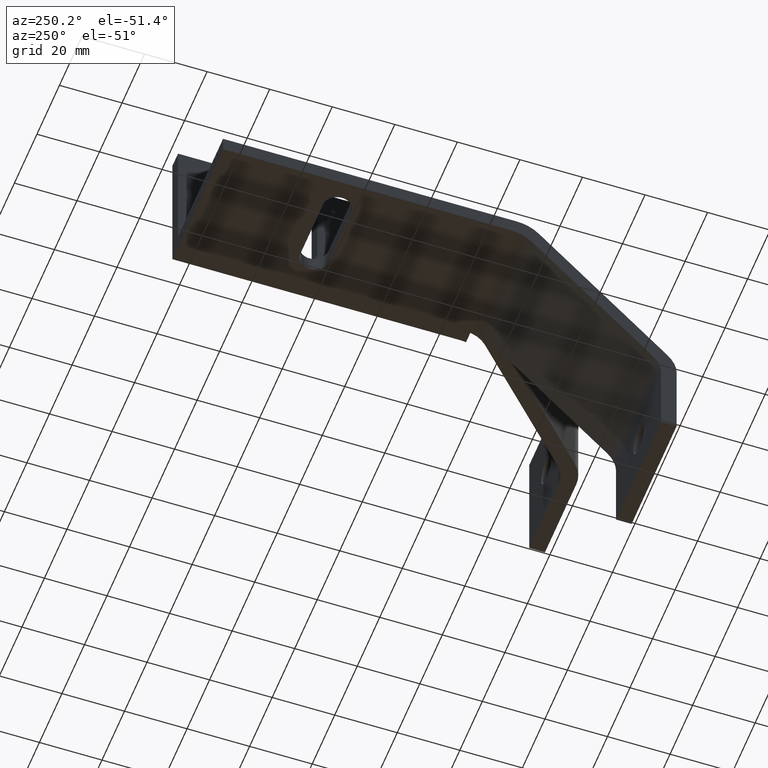
[diagram: clean part render]
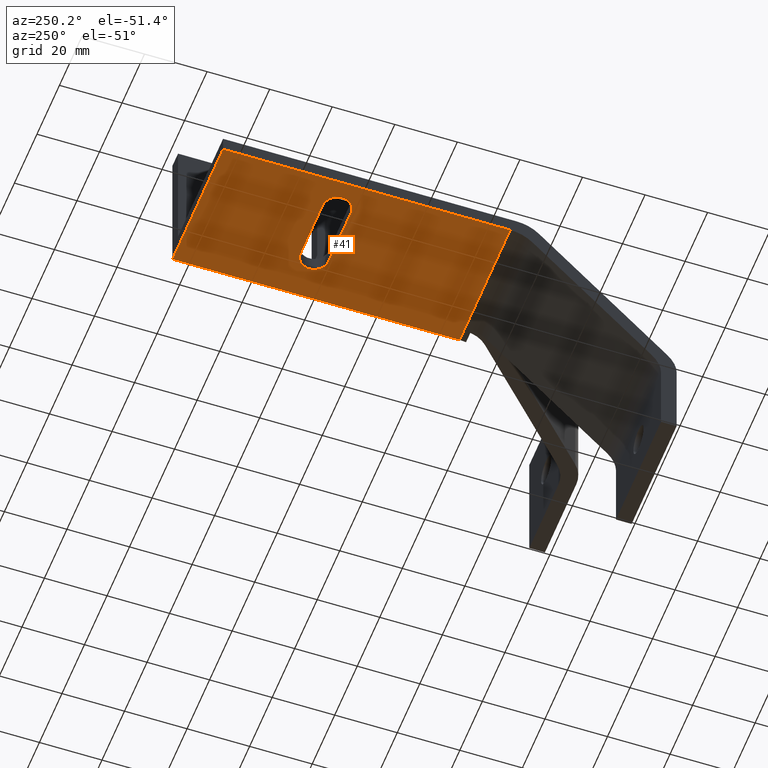
[diagram: same view with one face highlighted and labeled with its STEP entity id]
A machine part, auxiliary view. The second image highlights one B-rep face of the part: STEP entity #41.
In plain terms, the highlighted planar face has unit normal (0, 0, -1).
Its self-contained STEP definition (entity closure, byte-faithful):
#41 = ADVANCED_FACE ( 'NONE', ( #631, #630 ), #1220, .T. ) ;
#66 = EDGE_CURVE ( 'NONE', #1293, #285, #580, .T. ) ;
#68 = EDGE_CURVE ( 'NONE', #1293, #1092, #575, .T. ) ;
#78 = EDGE_CURVE ( 'NONE', #1092, #1097, #551, .T. ) ;
#140 = CARTESIAN_POINT ( 'NONE',  ( -107.0000000000000000, 105.0000000000000000, -4.999999999999997300 ) ) ;
#141 = DIRECTION ( 'NONE',  ( -0.0000000000000000000, -0.0000000000000000000, 1.000000000000000000 ) ) ;
#142 = DIRECTION ( 'NONE',  ( -1.000000000000000000, 0.0000000000000000000, 0.0000000000000000000 ) ) ;
#157 = CARTESIAN_POINT ( 'NONE',  ( -72.00000000000001400, 145.0000000000000000, -4.999999999999998200 ) ) ;
#158 = CARTESIAN_POINT ( 'NONE',  ( -107.0000000000000000, 100.5000000021469600, -4.999999999999997300 ) ) ;
#170 = CARTESIAN_POINT ( 'NONE',  ( -87.00000000000001400, 109.4999999779925600, -4.999999999999997300 ) ) ;
#180 = CARTESIAN_POINT ( 'NONE',  ( -87.00000000000001400, 100.5000000021469600, -4.999999999999997300 ) ) ;
#181 = CARTESIAN_POINT ( 'NONE',  ( -117.0000000000000000, 53.21320343510206600, -5.000000002500001100 ) ) ;
#186 = CARTESIAN_POINT ( 'NONE',  ( -72.00000000000001400, 53.21320343510205900, -5.000000000000000900 ) ) ;
#197 = CARTESIAN_POINT ( 'NONE',  ( -111.5000000000000000, 105.0000000000000000, -4.999999999999997300 ) ) ;
#198 = CARTESIAN_POINT ( 'NONE',  ( -117.0000000000000000, 145.0000000000000000, -5.000000003333332700 ) ) ;
#220 = CARTESIAN_POINT ( 'NONE',  ( -106.9999999995385200, 109.4999999779925600, -4.999999999999997300 ) ) ;
#239 = EDGE_CURVE ( 'NONE', #285, #1097, #489, .T. ) ;
#250 = EDGE_CURVE ( 'NONE', #1277, #286, #469, .T. ) ;
#253 = EDGE_CURVE ( 'NONE', #286, #790, #465, .T. ) ;
#255 = EDGE_CURVE ( 'NONE', #780, #1315, #461, .T. ) ;
#261 = EDGE_CURVE ( 'NONE', #790, #780, #449, .T. ) ;
#285 = VERTEX_POINT ( 'NONE', #157 ) ;
#286 = VERTEX_POINT ( 'NONE', #158 ) ;
#298 = CARTESIAN_POINT ( 'NONE',  ( -107.0000000000000000, 105.0000000000000000, -4.999999999999997300 ) ) ;
#299 = DIRECTION ( 'NONE',  ( -0.0000000000000000000, -0.0000000000000000000, 1.000000000000000000 ) ) ;
#300 = DIRECTION ( 'NONE',  ( -1.000000000000000000, 0.0000000000000000000, 0.0000000000000000000 ) ) ;
#306 = CARTESIAN_POINT ( 'NONE',  ( -94.50000000000000000, 100.5000000042939200, -5.000000000000000000 ) ) ;
#307 = DIRECTION ( 'NONE',  ( 1.000000000000000000, -0.0000000000000000000, -0.0000000000000000000 ) ) ;
#310 = CARTESIAN_POINT ( 'NONE',  ( -94.50000000000000000, 109.4999999559851300, -5.000000000000000000 ) ) ;
#311 = DIRECTION ( 'NONE',  ( -1.000000000000000000, 0.0000000000000000000, 0.0000000000000000000 ) ) ;
#322 = CARTESIAN_POINT ( 'NONE',  ( -87.00000000000001400, 105.0000000000000000, -4.999999999999997300 ) ) ;
#323 = DIRECTION ( 'NONE',  ( -0.0000000000000000000, -0.0000000000000000000, 1.000000000000000000 ) ) ;
#324 = DIRECTION ( 'NONE',  ( -1.000000000000000000, 0.0000000000000000000, 0.0000000000000000000 ) ) ;
#385 = CIRCLE ( 'NONE', #1328, 4.500000000000003600 ) ;
#449 = CIRCLE ( 'NONE', #723, 4.499999999999990200 ) ;
#460 = VECTOR ( 'NONE', #311, 1000.000000000000000 ) ;
#461 = LINE ( 'NONE', #310, #460 ) ;
#464 = VECTOR ( 'NONE', #307, 1000.000000000000000 ) ;
#465 = LINE ( 'NONE', #306, #464 ) ;
#469 = CIRCLE ( 'NONE', #725, 4.500000000000003600 ) ;
#487 = VECTOR ( 'NONE', #1040, 1000.000000000000000 ) ;
#489 = LINE ( 'NONE', #1039, #487 ) ;
#549 = VECTOR ( 'NONE', #1132, 1000.000000000000000 ) ;
#551 = LINE ( 'NONE', #1131, #549 ) ;
#574 = VECTOR ( 'NONE', #1181, 1000.000000000000000 ) ;
#575 = LINE ( 'NONE', #1180, #574 ) ;
#579 = VECTOR ( 'NONE', #1177, 1000.000000000000000 ) ;
#580 = LINE ( 'NONE', #1176, #579 ) ;
#630 = FACE_OUTER_BOUND ( 'NONE', #691, .T. ) ;
#631 = FACE_BOUND ( 'NONE', #638, .T. ) ;
#638 = EDGE_LOOP ( 'NONE', ( #915, #916, #914, #913, #912 ) ) ;
#691 = EDGE_LOOP ( 'NONE', ( #911, #910, #909, #908 ) ) ;
#723 = AXIS2_PLACEMENT_3D ( 'NONE', #322, #323, #324 ) ;
#725 = AXIS2_PLACEMENT_3D ( 'NONE', #298, #299, #300 ) ;
#758 = AXIS2_PLACEMENT_3D ( 'NONE', #1221, #1222, #1223 ) ;
#780 = VERTEX_POINT ( 'NONE', #170 ) ;
#790 = VERTEX_POINT ( 'NONE', #180 ) ;
#908 = ORIENTED_EDGE ( 'NONE', *, *, #78, .F. ) ;
#909 = ORIENTED_EDGE ( 'NONE', *, *, #239, .T. ) ;
#910 = ORIENTED_EDGE ( 'NONE', *, *, #66, .T. ) ;
#911 = ORIENTED_EDGE ( 'NONE', *, *, #68, .F. ) ;
#912 = ORIENTED_EDGE ( 'NONE', *, *, #255, .T. ) ;
#913 = ORIENTED_EDGE ( 'NONE', *, *, #261, .T. ) ;
#914 = ORIENTED_EDGE ( 'NONE', *, *, #253, .T. ) ;
#915 = ORIENTED_EDGE ( 'NONE', *, *, #1372, .T. ) ;
#916 = ORIENTED_EDGE ( 'NONE', *, *, #250, .T. ) ;
#1039 = CARTESIAN_POINT ( 'NONE',  ( -72.00000000000001400, 99.10660171799999300, -5.000000000000000000 ) ) ;
#1040 = DIRECTION ( 'NONE',  ( -0.0000000000000000000, -1.000000000000000000, -0.0000000000000000000 ) ) ;
#1092 = VERTEX_POINT ( 'NONE', #181 ) ;
#1097 = VERTEX_POINT ( 'NONE', #186 ) ;
#1131 = CARTESIAN_POINT ( 'NONE',  ( -94.50000000000000000, 53.21320343420412500, -5.000000000000000000 ) ) ;
#1132 = DIRECTION ( 'NONE',  ( 1.000000000000000000, -0.0000000000000000000, -0.0000000000000000000 ) ) ;
#1176 = CARTESIAN_POINT ( 'NONE',  ( -94.50000000000000000, 145.0000000000000000, -5.000000000000000000 ) ) ;
#1177 = DIRECTION ( 'NONE',  ( 1.000000000000000000, -0.0000000000000000000, -0.0000000000000000000 ) ) ;
#1180 = CARTESIAN_POINT ( 'NONE',  ( -117.0000000000000000, 72.50000000000000000, -5.000000005000001300 ) ) ;
#1181 = DIRECTION ( 'NONE',  ( -0.0000000000000000000, -1.000000000000000000, -0.0000000000000000000 ) ) ;
#1220 = PLANE ( 'NONE',  #758 ) ;
#1221 = CARTESIAN_POINT ( 'NONE',  ( -72.00000000000001400, 53.21320343600000100, -5.000000000000000000 ) ) ;
#1222 = DIRECTION ( 'NONE',  ( 0.0000000000000000000, 0.0000000000000000000, -1.000000000000000000 ) ) ;
#1223 = DIRECTION ( 'NONE',  ( -1.000000000000000000, 0.0000000000000000000, 0.0000000000000000000 ) ) ;
#1277 = VERTEX_POINT ( 'NONE', #197 ) ;
#1293 = VERTEX_POINT ( 'NONE', #198 ) ;
#1315 = VERTEX_POINT ( 'NONE', #220 ) ;
#1328 = AXIS2_PLACEMENT_3D ( 'NONE', #140, #141, #142 ) ;
#1372 = EDGE_CURVE ( 'NONE', #1315, #1277, #385, .T. ) ;